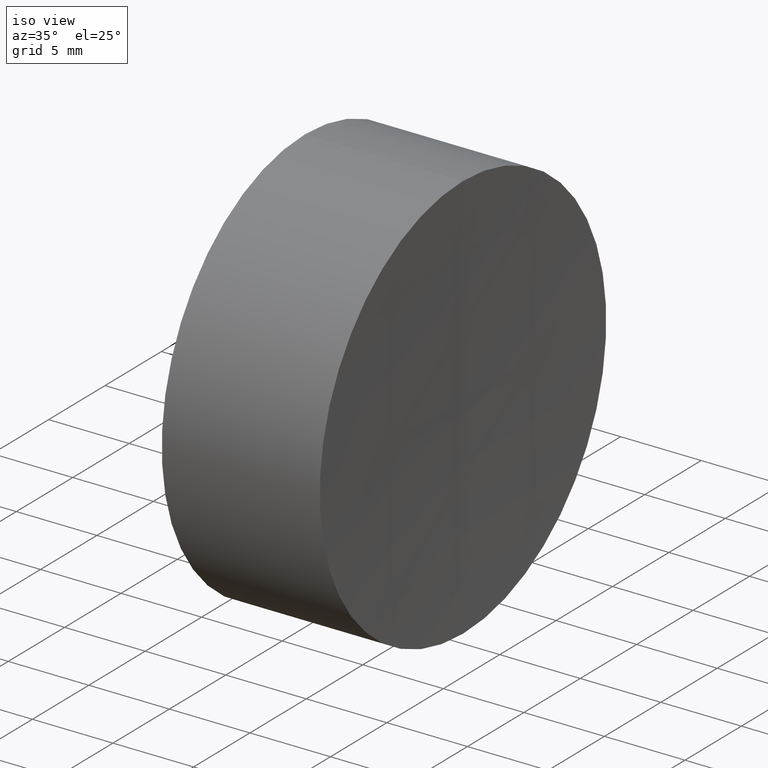
[diagram: clean part render]
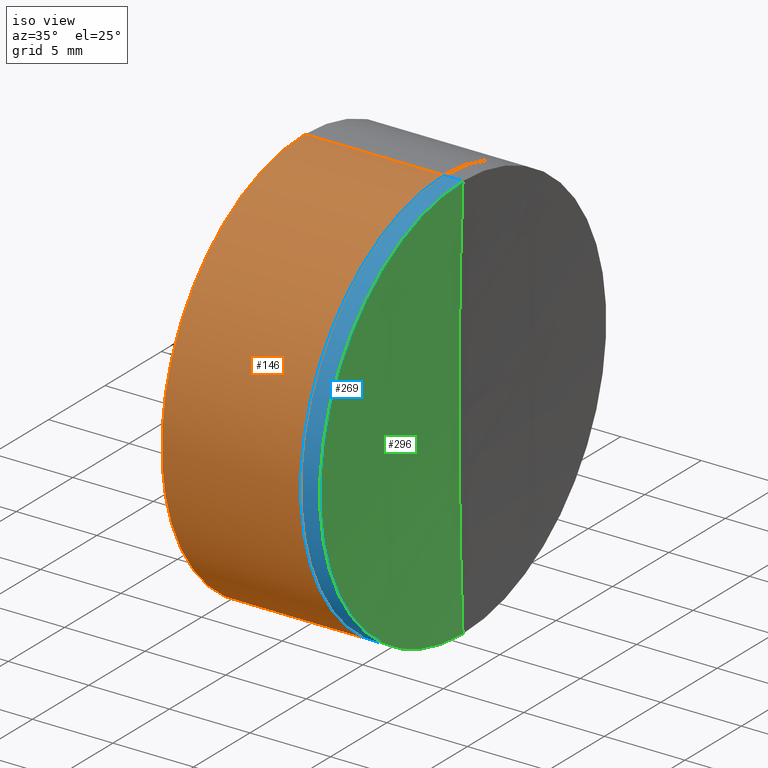
[diagram: same view with three faces highlighted in distinct colors, each labeled with its STEP entity id]
A machine part, iso view with three faces highlighted in distinct colors.
Their STEP definitions:

[orange] entity #146 — the highlighted cylindrical surface (partial cylindrical patch) has radius 12.7 mm, axis along (-1, -0, 0).
#3 = VECTOR ( 'NONE', #318, 1000.000000000000000 ) ;
#24 = VERTEX_POINT ( 'NONE', #34 ) ;
#25 = VERTEX_POINT ( 'NONE', #46 ) ;
#27 = CARTESIAN_POINT ( 'NONE',  ( -185.2744740506581700, 0.0000000000000000000, 12.70000000000001400 ) ) ;
#34 = CARTESIAN_POINT ( 'NONE',  ( 161.5418237581144500, 0.0000000000000000000, 12.69999999999993900 ) ) ;
#46 = CARTESIAN_POINT ( 'NONE',  ( 152.9182642356440200, 0.0000000000000000000, 12.69999999999993700 ) ) ;
#48 = VERTEX_POINT ( 'NONE', #298 ) ;
#55 = VERTEX_POINT ( 'NONE', #249 ) ;
#64 = CARTESIAN_POINT ( 'NONE',  ( 161.5418237581144500, 0.0000000000000000000, -5.440256947019921600E-014 ) ) ;
#82 = VECTOR ( 'NONE', #305, 1000.000000000000000 ) ;
#88 = ORIENTED_EDGE ( 'NONE', *, *, #228, .T. ) ;
#100 = AXIS2_PLACEMENT_3D ( 'NONE', #283, #170, #294 ) ;
#110 = LINE ( 'NONE', #27, #3 ) ;
#112 = DIRECTION ( 'NONE',  ( -1.000000000000000000, -0.0000000000000000000, 2.160304922313981000E-016 ) ) ;
#118 = DIRECTION ( 'NONE',  ( 0.0000000000000000000, 0.0000000000000000000, 1.000000000000000000 ) ) ;
#119 = FACE_OUTER_BOUND ( 'NONE', #260, .T. ) ;
#134 = CIRCLE ( 'NONE', #222, 12.69999999999999000 ) ;
#144 = ORIENTED_EDGE ( 'NONE', *, *, #281, .T. ) ;
#146 = ADVANCED_FACE ( 'NONE', ( #119 ), #154, .T. ) ;
#154 = CYLINDRICAL_SURFACE ( 'NONE', #100, 12.69999999999999200 ) ;
#157 = DIRECTION ( 'NONE',  ( 0.0000000000000000000, 0.0000000000000000000, 1.000000000000000000 ) ) ;
#170 = DIRECTION ( 'NONE',  ( -1.000000000000000000, -0.0000000000000000000, 2.160304922313981000E-016 ) ) ;
#174 = ORIENTED_EDGE ( 'NONE', *, *, #225, .F. ) ;
#176 = CARTESIAN_POINT ( 'NONE',  ( -185.2744740506581700, 1.555301434917137800E-015, -12.69999999999997100 ) ) ;
#188 = CARTESIAN_POINT ( 'NONE',  ( 152.9182642356440200, 0.0000000000000000000, -5.253961766177316900E-014 ) ) ;
#189 = AXIS2_PLACEMENT_3D ( 'NONE', #64, #303, #157 ) ;
#195 = CIRCLE ( 'NONE', #189, 12.69999999999999200 ) ;
#203 = EDGE_CURVE ( 'NONE', #55, #25, #134, .T. ) ;
#222 = AXIS2_PLACEMENT_3D ( 'NONE', #188, #112, #118 ) ;
#225 = EDGE_CURVE ( 'NONE', #48, #55, #261, .T. ) ;
#228 = EDGE_CURVE ( 'NONE', #24, #25, #110, .T. ) ;
#249 = CARTESIAN_POINT ( 'NONE',  ( 152.9182642356440200, 1.555301434917137200E-015, -12.70000000000005400 ) ) ;
#260 = EDGE_LOOP ( 'NONE', ( #174, #144, #88, #320 ) ) ;
#261 = LINE ( 'NONE', #176, #82 ) ;
#281 = EDGE_CURVE ( 'NONE', #48, #24, #195, .T. ) ;
#283 = CARTESIAN_POINT ( 'NONE',  ( -185.2744740506581700, 0.0000000000000000000, 2.052032605930108700E-014 ) ) ;
#294 = DIRECTION ( 'NONE',  ( 0.0000000000000000000, 0.0000000000000000000, 1.000000000000000000 ) ) ;
#298 = CARTESIAN_POINT ( 'NONE',  ( 161.5418237581144500, 1.555301434917138000E-015, -12.70000000000004700 ) ) ;
#303 = DIRECTION ( 'NONE',  ( -1.000000000000000000, -0.0000000000000000000, 2.160304922313981000E-016 ) ) ;
#305 = DIRECTION ( 'NONE',  ( -1.000000000000000000, -0.0000000000000000000, 2.160304922313981000E-016 ) ) ;
#318 = DIRECTION ( 'NONE',  ( -1.000000000000000000, -0.0000000000000000000, 2.160304922313981000E-016 ) ) ;
#320 = ORIENTED_EDGE ( 'NONE', *, *, #203, .F. ) ;

[blue] entity #269 — the highlighted cylindrical surface (partial cylindrical patch) has radius 12.7 mm, axis along (-1, -0, -0).
#14 = AXIS2_PLACEMENT_3D ( 'NONE', #215, #312, #221 ) ;
#19 = CIRCLE ( 'NONE', #180, 12.69999999999994100 ) ;
#21 = EDGE_CURVE ( 'NONE', #44, #52, #291, .T. ) ;
#26 = CARTESIAN_POINT ( 'NONE',  ( 152.9182642356440200, 1.555301434917130500E-015, -12.69999999999993500 ) ) ;
#31 = DIRECTION ( 'NONE',  ( 0.0000000000000000000, 0.0000000000000000000, 1.000000000000000000 ) ) ;
#32 = DIRECTION ( 'NONE',  ( -1.000000000000000000, -0.0000000000000000000, -0.0000000000000000000 ) ) ;
#36 = VERTEX_POINT ( 'NONE', #206 ) ;
#44 = VERTEX_POINT ( 'NONE', #218 ) ;
#52 = VERTEX_POINT ( 'NONE', #105 ) ;
#75 = EDGE_CURVE ( 'NONE', #345, #44, #156, .T. ) ;
#86 = EDGE_CURVE ( 'NONE', #345, #36, #19, .T. ) ;
#105 = CARTESIAN_POINT ( 'NONE',  ( 161.5418237581144500, 0.0000000000000000000, 12.69999999999993500 ) ) ;
#114 = DIRECTION ( 'NONE',  ( -1.000000000000000000, -0.0000000000000000000, -0.0000000000000000000 ) ) ;
#115 = EDGE_CURVE ( 'NONE', #36, #52, #340, .T. ) ;
#122 = VECTOR ( 'NONE', #32, 1000.000000000000000 ) ;
#129 = CARTESIAN_POINT ( 'NONE',  ( 162.7215673305927900, 0.0000000000000000000, 0.0000000000000000000 ) ) ;
#156 = LINE ( 'NONE', #26, #122 ) ;
#168 = AXIS2_PLACEMENT_3D ( 'NONE', #321, #114, #278 ) ;
#173 = ORIENTED_EDGE ( 'NONE', *, *, #86, .T. ) ;
#180 = AXIS2_PLACEMENT_3D ( 'NONE', #129, #187, #31 ) ;
#185 = ORIENTED_EDGE ( 'NONE', *, *, #115, .T. ) ;
#187 = DIRECTION ( 'NONE',  ( -1.000000000000000000, -0.0000000000000000000, -0.0000000000000000000 ) ) ;
#192 = ORIENTED_EDGE ( 'NONE', *, *, #21, .F. ) ;
#204 = CARTESIAN_POINT ( 'NONE',  ( 162.7215673305927900, 1.555301434917131300E-015, -12.69999999999994100 ) ) ;
#206 = CARTESIAN_POINT ( 'NONE',  ( 162.7215673305927900, 0.0000000000000000000, 12.69999999999994100 ) ) ;
#215 = CARTESIAN_POINT ( 'NONE',  ( 161.5418237581144500, 0.0000000000000000000, 0.0000000000000000000 ) ) ;
#218 = CARTESIAN_POINT ( 'NONE',  ( 161.5418237581144500, 1.555301434917130500E-015, -12.69999999999999600 ) ) ;
#221 = DIRECTION ( 'NONE',  ( 0.0000000000000000000, 0.0000000000000000000, 1.000000000000000000 ) ) ;
#224 = ORIENTED_EDGE ( 'NONE', *, *, #75, .F. ) ;
#259 = CYLINDRICAL_SURFACE ( 'NONE', #168, 12.69999999999993500 ) ;
#266 = DIRECTION ( 'NONE',  ( -1.000000000000000000, -0.0000000000000000000, -0.0000000000000000000 ) ) ;
#269 = ADVANCED_FACE ( 'NONE', ( #275 ), #259, .T. ) ;
#275 = FACE_OUTER_BOUND ( 'NONE', #287, .T. ) ;
#278 = DIRECTION ( 'NONE',  ( 0.0000000000000000000, 0.0000000000000000000, 1.000000000000000000 ) ) ;
#287 = EDGE_LOOP ( 'NONE', ( #224, #173, #185, #192 ) ) ;
#291 = CIRCLE ( 'NONE', #14, 12.69999999999993000 ) ;
#312 = DIRECTION ( 'NONE',  ( -1.000000000000000000, -0.0000000000000000000, -0.0000000000000000000 ) ) ;
#321 = CARTESIAN_POINT ( 'NONE',  ( 152.9182642356440200, 0.0000000000000000000, 0.0000000000000000000 ) ) ;
#336 = VECTOR ( 'NONE', #266, 1000.000000000000000 ) ;
#340 = LINE ( 'NONE', #343, #336 ) ;
#343 = CARTESIAN_POINT ( 'NONE',  ( 152.9182642356440200, 0.0000000000000000000, 12.69999999999993500 ) ) ;
#345 = VERTEX_POINT ( 'NONE', #204 ) ;

[green] entity #296 — the highlighted spherical surface has radius 332.3 mm.
#1 = DIRECTION ( 'NONE',  ( 0.0000000000000000000, 0.0000000000000000000, 1.000000000000000000 ) ) ;
#2 = DIRECTION ( 'NONE',  ( 0.0000000000000000000, -1.000000000000000000, -1.224646799147353200E-016 ) ) ;
#10 = FACE_OUTER_BOUND ( 'NONE', #161, .T. ) ;
#19 = CIRCLE ( 'NONE', #180, 12.69999999999994100 ) ;
#31 = DIRECTION ( 'NONE',  ( 0.0000000000000000000, 0.0000000000000000000, 1.000000000000000000 ) ) ;
#36 = VERTEX_POINT ( 'NONE', #206 ) ;
#37 = EDGE_CURVE ( 'NONE', #36, #240, #56, .T. ) ;
#41 = SPHERICAL_SURFACE ( 'NONE', #239, 332.3000000000000100 ) ;
#50 = AXIS2_PLACEMENT_3D ( 'NONE', #128, #2, #83 ) ;
#56 = CIRCLE ( 'NONE', #50, 332.3000000000000100 ) ;
#61 = AXIS2_PLACEMENT_3D ( 'NONE', #99, #186, #1 ) ;
#65 = ORIENTED_EDGE ( 'NONE', *, *, #37, .F. ) ;
#66 = DIRECTION ( 'NONE',  ( -0.0000000000000000000, -1.000000000000000000, -0.0000000000000000000 ) ) ;
#83 = DIRECTION ( 'NONE',  ( 0.0000000000000000000, 1.224646799147353200E-016, -1.000000000000000000 ) ) ;
#86 = EDGE_CURVE ( 'NONE', #345, #36, #19, .T. ) ;
#99 = CARTESIAN_POINT ( 'NONE',  ( 494.7787913146524900, 0.0000000000000000000, 0.0000000000000000000 ) ) ;
#103 = EDGE_CURVE ( 'NONE', #345, #240, #160, .T. ) ;
#128 = CARTESIAN_POINT ( 'NONE',  ( 494.7787913146524900, 0.0000000000000000000, 0.0000000000000000000 ) ) ;
#129 = CARTESIAN_POINT ( 'NONE',  ( 162.7215673305927900, 0.0000000000000000000, 0.0000000000000000000 ) ) ;
#160 = CIRCLE ( 'NONE', #61, 332.3000000000000100 ) ;
#161 = EDGE_LOOP ( 'NONE', ( #65, #181, #280 ) ) ;
#180 = AXIS2_PLACEMENT_3D ( 'NONE', #129, #187, #31 ) ;
#181 = ORIENTED_EDGE ( 'NONE', *, *, #86, .F. ) ;
#186 = DIRECTION ( 'NONE',  ( 0.0000000000000000000, 1.000000000000000000, -0.0000000000000000000 ) ) ;
#187 = DIRECTION ( 'NONE',  ( -1.000000000000000000, -0.0000000000000000000, -0.0000000000000000000 ) ) ;
#204 = CARTESIAN_POINT ( 'NONE',  ( 162.7215673305927900, 1.555301434917131300E-015, -12.69999999999994100 ) ) ;
#206 = CARTESIAN_POINT ( 'NONE',  ( 162.7215673305927900, 0.0000000000000000000, 12.69999999999994100 ) ) ;
#226 = CARTESIAN_POINT ( 'NONE',  ( 162.4787913146524800, 0.0000000000000000000, -2.034750656783327300E-014 ) ) ;
#239 = AXIS2_PLACEMENT_3D ( 'NONE', #339, #66, #344 ) ;
#240 = VERTEX_POINT ( 'NONE', #226 ) ;
#280 = ORIENTED_EDGE ( 'NONE', *, *, #103, .T. ) ;
#296 = ADVANCED_FACE ( 'NONE', ( #10 ), #41, .F. ) ;
#339 = CARTESIAN_POINT ( 'NONE',  ( 494.7787913146524900, 0.0000000000000000000, 0.0000000000000000000 ) ) ;
#344 = DIRECTION ( 'NONE',  ( 0.0000000000000000000, 0.0000000000000000000, -1.000000000000000000 ) ) ;
#345 = VERTEX_POINT ( 'NONE', #204 ) ;